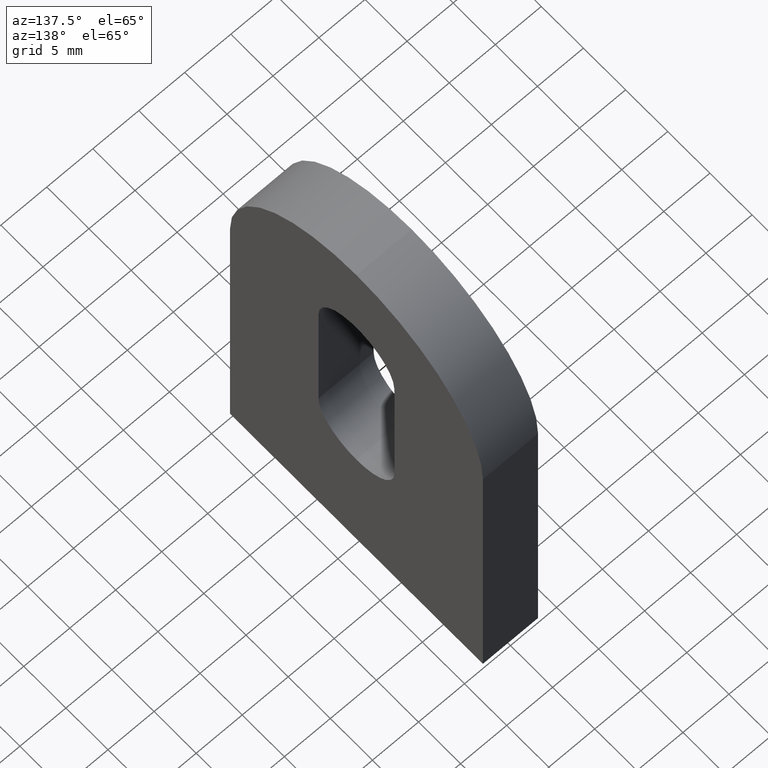
[diagram: clean part render]
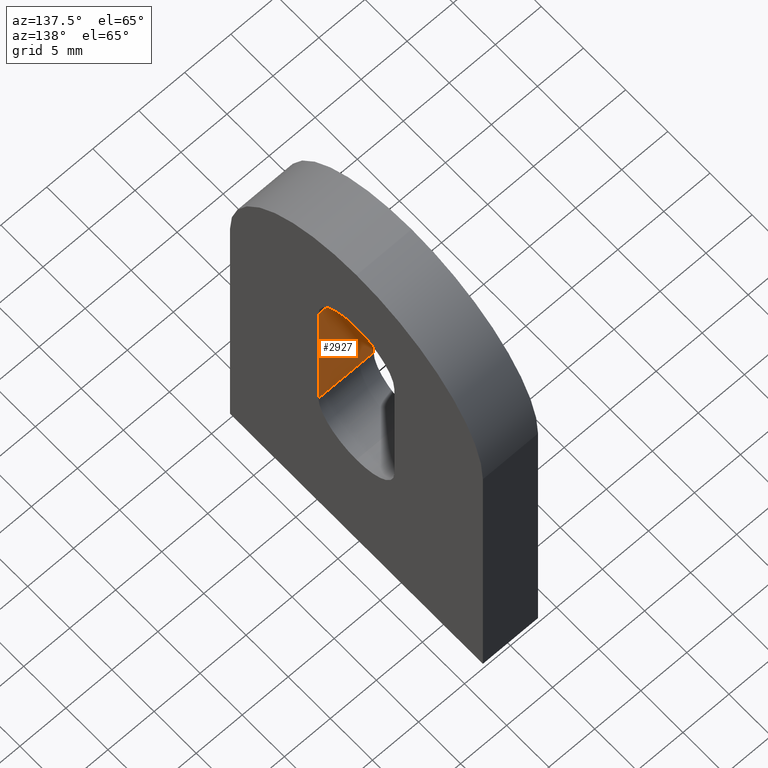
[diagram: same view with one face highlighted and labeled with its STEP entity id]
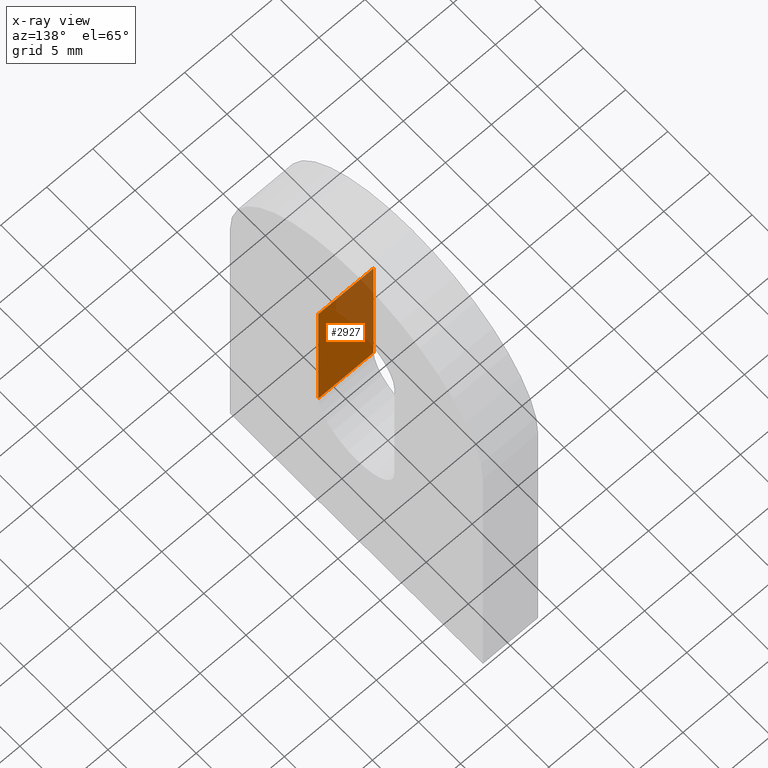
[diagram: x-ray of the same camera — body ghosted, the highlighted face saturated]
A machine part, auxiliary view. The second image highlights one B-rep face of the part: STEP entity #2927.
The next image is the same camera in x-ray: the body ghosted, the highlighted face saturated — about 35% of this face is hidden behind the body in this view.
In plain terms, the highlighted planar face has unit normal (0, -1, -0).
Its self-contained STEP definition (entity closure, byte-faithful):
#145 = DIRECTION ( 'NONE',  ( 1.000000000000000000, -0.0000000000000000000, -0.0000000000000000000 ) ) ;
#380 = DIRECTION ( 'NONE',  ( 0.0000000000000000000, 1.626303258728256700E-016, -1.000000000000000000 ) ) ;
#413 = CARTESIAN_POINT ( 'NONE',  ( -3.000000000000000000, -4.500000000000000900, 35.50000000000000000 ) ) ;
#585 = ORIENTED_EDGE ( 'NONE', *, *, #7594, .F. ) ;
#844 = VECTOR ( 'NONE', #3772, 1000.000000000000000 ) ;
#1336 = DIRECTION ( 'NONE',  ( 0.0000000000000000000, -1.000000000000000000, -1.626303258728256700E-016 ) ) ;
#1843 = VECTOR ( 'NONE', #380, 1000.000000000000000 ) ;
#2277 = CARTESIAN_POINT ( 'NONE',  ( -3.000000000000000000, -4.500000000000000900, 35.50000000000000000 ) ) ;
#2486 = FACE_OUTER_BOUND ( 'NONE', #6568, .T. ) ;
#2626 = LINE ( 'NONE', #6291, #10824 ) ;
#2745 = VERTEX_POINT ( 'NONE', #6501 ) ;
#2927 = ADVANCED_FACE ( 'NONE', ( #2486 ), #7464, .F. ) ;
#3772 = DIRECTION ( 'NONE',  ( 0.0000000000000000000, 1.626303258728256700E-016, -1.000000000000000000 ) ) ;
#4490 = EDGE_CURVE ( 'NONE', #6803, #9332, #2626, .T. ) ;
#5166 = VERTEX_POINT ( 'NONE', #6455 ) ;
#5576 = CARTESIAN_POINT ( 'NONE',  ( 3.000000000000000000, -4.500000000000000900, 35.50000000000000000 ) ) ;
#5824 = LINE ( 'NONE', #10376, #10034 ) ;
#6291 = CARTESIAN_POINT ( 'NONE',  ( -3.000000000000000000, -4.500000000000000000, 19.49999999999999600 ) ) ;
#6455 = CARTESIAN_POINT ( 'NONE',  ( -3.000000000000000000, -4.500000000000000900, 35.50000000000000000 ) ) ;
#6501 = CARTESIAN_POINT ( 'NONE',  ( 3.000000000000000000, -4.500000000000000900, 35.50000000000000000 ) ) ;
#6531 = CARTESIAN_POINT ( 'NONE',  ( -3.000000000000000000, -4.499999999999998200, 19.49999999999999600 ) ) ;
#6537 = DIRECTION ( 'NONE',  ( 0.0000000000000000000, 1.626303258728256700E-016, -1.000000000000000000 ) ) ;
#6568 = EDGE_LOOP ( 'NONE', ( #7882, #7730, #585, #8901 ) ) ;
#6796 = LINE ( 'NONE', #5576, #844 ) ;
#6803 = VERTEX_POINT ( 'NONE', #6531 ) ;
#7011 = EDGE_CURVE ( 'NONE', #5166, #2745, #5824, .T. ) ;
#7194 = DIRECTION ( 'NONE',  ( 1.000000000000000000, -0.0000000000000000000, -0.0000000000000000000 ) ) ;
#7464 = PLANE ( 'NONE',  #9986 ) ;
#7594 = EDGE_CURVE ( 'NONE', #5166, #6803, #9329, .T. ) ;
#7730 = ORIENTED_EDGE ( 'NONE', *, *, #4490, .F. ) ;
#7734 = EDGE_CURVE ( 'NONE', #2745, #9332, #6796, .T. ) ;
#7882 = ORIENTED_EDGE ( 'NONE', *, *, #7734, .T. ) ;
#8901 = ORIENTED_EDGE ( 'NONE', *, *, #7011, .T. ) ;
#9329 = LINE ( 'NONE', #2277, #1843 ) ;
#9332 = VERTEX_POINT ( 'NONE', #10631 ) ;
#9986 = AXIS2_PLACEMENT_3D ( 'NONE', #413, #1336, #6537 ) ;
#10034 = VECTOR ( 'NONE', #7194, 1000.000000000000000 ) ;
#10376 = CARTESIAN_POINT ( 'NONE',  ( -3.000000000000000000, -4.500000000000000900, 35.50000000000000000 ) ) ;
#10631 = CARTESIAN_POINT ( 'NONE',  ( 3.000000000000000000, -4.500000000000000000, 19.49999999999999600 ) ) ;
#10824 = VECTOR ( 'NONE', #145, 1000.000000000000000 ) ;